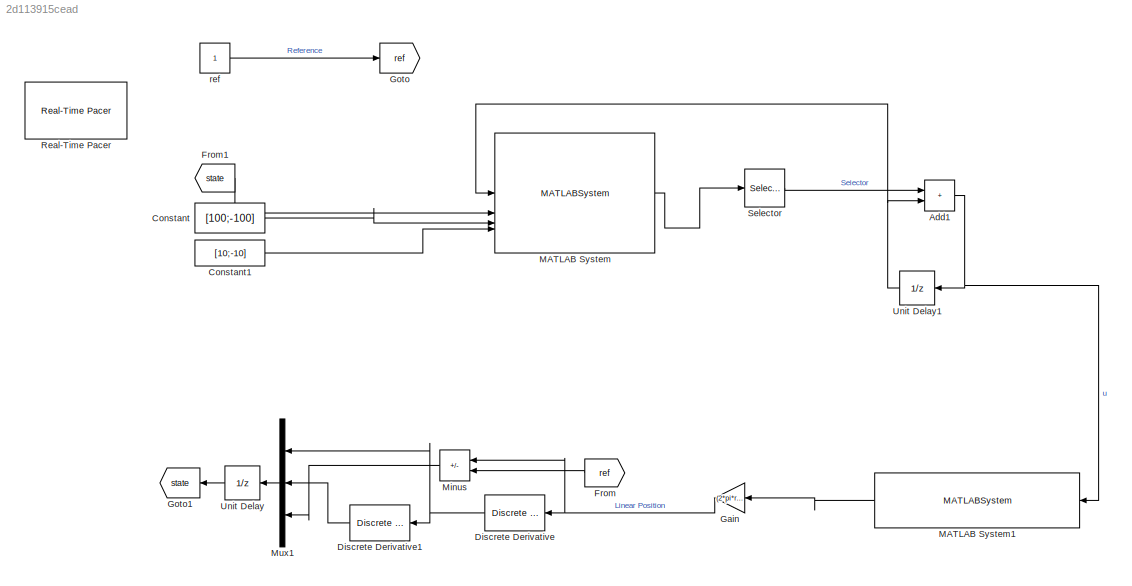
MODEL slx_2d113915cead
KIND model
CONFIG AbsTol = auto
CONFIG EnableMultiTasking = off
CONFIG FixedStep = dt
CONFIG InitFcn = Casadi_MatSys_SimulationSetup\n
CONFIG MaxStep = auto
CONFIG MinStep = auto
CONFIG RelTol = 1e-3
CONFIG SampleTimeConstraint = Unconstrained
CONFIG SolverName = FixedStepAuto
CONFIG StartTime = 0.0
CONFIG StopTime = 60
BLOCK [Sum] Add1
  IconShape = rectangular
BLOCK [Constant] Constant
  Value = [100;-100]
BLOCK [Constant] Constant1
  Value = [10;-10]
BLOCK [Reference] Discrete Derivative  REF=simulink/Discrete/Discrete Derivative
  NameLocation = top
  SourceBlock = simulink/Discrete/Discrete Derivative
  SourceType = Discrete Derivative
BLOCK [Reference] Discrete Derivative1  REF=simulink/Discrete/Discrete Derivative
  NameLocation = top
  SourceBlock = simulink/Discrete/Discrete Derivative
  SourceType = Discrete Derivative
BLOCK [From] From
  GotoTag = ref
  NameLocation = top
BLOCK [From] From1
  GotoTag = state
BLOCK [Gain] Gain
  Gain = (2*pi*r_wheel)/360
  NameLocation = top
BLOCK [Goto] Goto
  GotoTag = ref
BLOCK [Goto] Goto1
  GotoTag = state
  NameLocation = top
BLOCK [MATLABSystem] MATLAB System
  A = A_mat
  B = B_mat
  C = C_mat
  D = D_mat
  E = E
  MaskDisplay = disp('Casadi_Opti_MatSys');\nport_label('input',1,'u0');\nport_label('input',2,'x0');\nport_label('input',3,'u_bounds');\nport_label('input',4,'du_bounds');\nport_label('output',1,'du');\nport_label('output',2,'x');
  MaskType = Casadi_Opti_MatSys
  N = 3
  Q = Q
  R = R
  SimulateUsing = Interpreted execution
  System = Casadi_Opti_MatSys
  dt = 1
BLOCK [MATLABSystem] MATLAB System1
  MaskDisplay = disp('LegoEV3Brick');\nport_label('input',1,'SpeedInput');\nport_label('output',1,'AngPos');\nport_label('output',2,'SpeedInput');
  MaskType = LegoEV3Brick
  NameLocation = top
  SimulateUsing = Interpreted execution
  System = LegoEV3Brick
  address = 192.168.1.70
  id = 0016534cde97
  motorport = A
  retry_attempts = 5
BLOCK [Sum] Minus
  IconShape = rectangular
  Inputs = +-
  NameLocation = top
BLOCK [Mux] Mux1
  DisplayOption = bar
  Inputs = 3
  NameLocation = top
BLOCK [Reference] Real-Time Pacer  REF=realtime_pacer_lib/Real-Time Pacer
  SourceBlock = realtime_pacer_lib/Real-Time Pacer
  SourceProductName = Real-Time Pacer
  SourceType = RealTime_Pacer
BLOCK [Selector] Selector
  IndexOptions = Index vector (dialog)
  Indices = [1]
  InputPortWidth = 3
  OutputSizes = 1
BLOCK [UnitDelay] Unit Delay
  HasFrameUpgradeWarning = on
  NameLocation = top
  SampleTime = -1
BLOCK [UnitDelay] Unit Delay1
  HasFrameUpgradeWarning = on
  NameLocation = top
  SampleTime = -1
BLOCK [Constant] ref
NET Add1:1 -> MATLAB System1:1, Unit Delay1:1
LINE Constant1:1 -> MATLAB System:4
LINE Constant:1 -> MATLAB System:3
LINE Discrete Derivative1:1 -> Mux1:2
NET Discrete Derivative:1 -> Discrete Derivative1:1, Mux1:1
LINE From1:1 -> MATLAB System:2
LINE From:1 -> Minus:2
NET Gain:1 -> Discrete Derivative:1, Minus:1
LINE MATLAB System1:1 -> Gain:1
LINE MATLAB System:1 -> Selector:1
LINE Minus:1 -> Mux1:3
LINE Mux1:1 -> Unit Delay:1
LINE Selector:1 -> Add1:1
NET Unit Delay1:1 -> Add1:2, MATLAB System:1
LINE Unit Delay:1 -> Goto1:1
LINE ref:1 -> Goto:1
note: NET lines group one-source signal fan-out (src -> all destinations, sorted); 1:1 wires keep LINE
